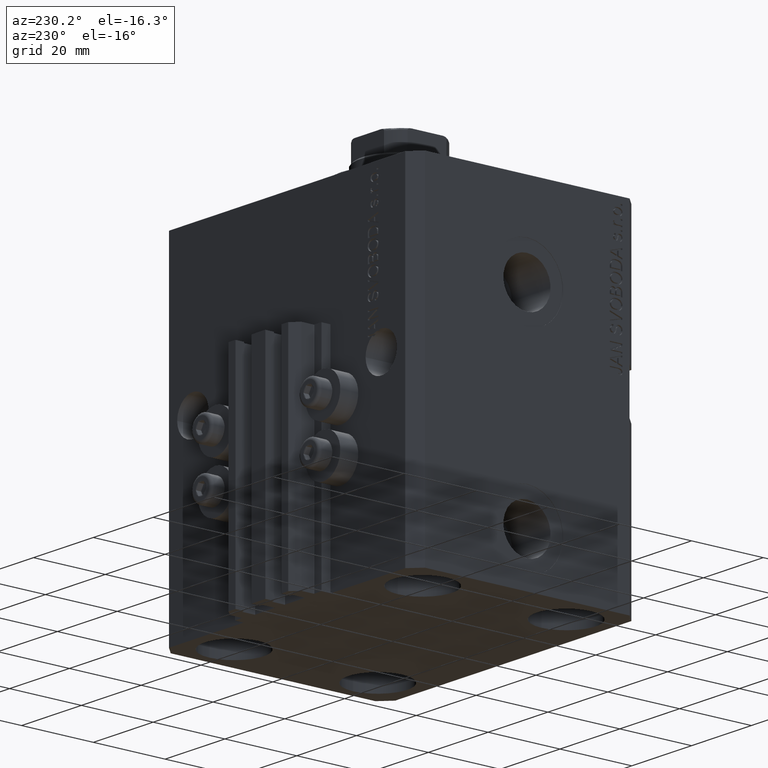
[diagram: clean part render]
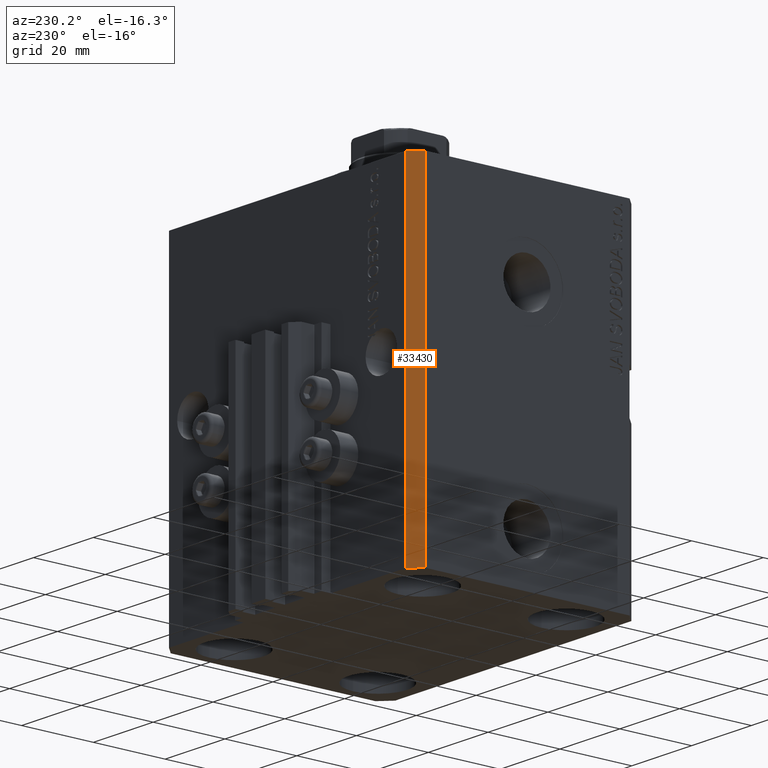
[diagram: same view with one face highlighted and labeled with its STEP entity id]
A machine part, auxiliary view. The second image highlights one B-rep face of the part: STEP entity #33430.
In plain terms, the highlighted planar face has unit normal (-0.7071, 0.7071, 0).
Its self-contained STEP definition (entity closure, byte-faithful):
#917 = VERTEX_POINT ( 'NONE', #3019 ) ;
#1611 = VECTOR ( 'NONE', #12108, 1000.000000000000000 ) ;
#2329 = VECTOR ( 'NONE', #35895, 1000.000000000000000 ) ;
#3019 = CARTESIAN_POINT ( 'NONE',  ( -42.50000000000000000, 28.50000000000000000, -93.00000000000000000 ) ) ;
#5265 = AXIS2_PLACEMENT_3D ( 'NONE', #10484, #19566, #11666 ) ;
#9047 = CARTESIAN_POINT ( 'NONE',  ( -42.50000000000000000, 28.50000000000000000, -93.00000000000000000 ) ) ;
#9477 = CARTESIAN_POINT ( 'NONE',  ( -39.50000000000000711, 31.50000000000000000, -93.00000000000000000 ) ) ;
#10484 = CARTESIAN_POINT ( 'NONE',  ( -39.50000000000000711, 31.50000000000000000, -93.00000000000000000 ) ) ;
#10899 = LINE ( 'NONE', #32997, #2329 ) ;
#11315 = EDGE_LOOP ( 'NONE', ( #15658, #32850, #12601, #26369 ) ) ;
#11666 = DIRECTION ( 'NONE',  ( -0.7071067811865471286, -0.7071067811865479058, 0.000000000000000000 ) ) ;
#11941 = DIRECTION ( 'NONE',  ( 0.000000000000000000, 0.000000000000000000, 1.000000000000000000 ) ) ;
#12108 = DIRECTION ( 'NONE',  ( -0.7071067811865471286, -0.7071067811865479058, 0.000000000000000000 ) ) ;
#12601 = ORIENTED_EDGE ( 'NONE', *, *, #39520, .T. ) ;
#15658 = ORIENTED_EDGE ( 'NONE', *, *, #44192, .F. ) ;
#15721 = LINE ( 'NONE', #45056, #1611 ) ;
#17165 = LINE ( 'NONE', #9477, #33053 ) ;
#17621 = CARTESIAN_POINT ( 'NONE',  ( -39.50000000000000711, 31.50000000000000000, 0.000000000000000000 ) ) ;
#19566 = DIRECTION ( 'NONE',  ( -0.7071067811865479058, 0.7071067811865471286, 0.000000000000000000 ) ) ;
#23463 = LINE ( 'NONE', #9047, #33088 ) ;
#26369 = ORIENTED_EDGE ( 'NONE', *, *, #43635, .T. ) ;
#26884 = CARTESIAN_POINT ( 'NONE',  ( -42.50000000000000000, 28.50000000000000000, 0.000000000000000000 ) ) ;
#31812 = DIRECTION ( 'NONE',  ( 0.000000000000000000, 0.000000000000000000, 1.000000000000000000 ) ) ;
#32350 = FACE_OUTER_BOUND ( 'NONE', #11315, .T. ) ;
#32850 = ORIENTED_EDGE ( 'NONE', *, *, #39483, .F. ) ;
#32997 = CARTESIAN_POINT ( 'NONE',  ( -39.50000000000000711, 31.50000000000000000, -93.00000000000000000 ) ) ;
#33053 = VECTOR ( 'NONE', #31812, 1000.000000000000000 ) ;
#33061 = CARTESIAN_POINT ( 'NONE',  ( -39.50000000000000711, 31.50000000000000000, -93.00000000000000000 ) ) ;
#33088 = VECTOR ( 'NONE', #11941, 1000.000000000000000 ) ;
#33430 = ADVANCED_FACE ( 'NONE', ( #32350 ), #43433, .T. ) ;
#35360 = VERTEX_POINT ( 'NONE', #33061 ) ;
#35895 = DIRECTION ( 'NONE',  ( -0.7071067811865471286, -0.7071067811865479058, 0.000000000000000000 ) ) ;
#37913 = VERTEX_POINT ( 'NONE', #26884 ) ;
#38195 = VERTEX_POINT ( 'NONE', #17621 ) ;
#39483 = EDGE_CURVE ( 'NONE', #35360, #38195, #17165, .T. ) ;
#39520 = EDGE_CURVE ( 'NONE', #35360, #917, #10899, .T. ) ;
#43433 = PLANE ( 'NONE',  #5265 ) ;
#43635 = EDGE_CURVE ( 'NONE', #917, #37913, #23463, .T. ) ;
#44192 = EDGE_CURVE ( 'NONE', #38195, #37913, #15721, .T. ) ;
#45056 = CARTESIAN_POINT ( 'NONE',  ( -39.50000000000000711, 31.50000000000000000, 0.000000000000000000 ) ) ;